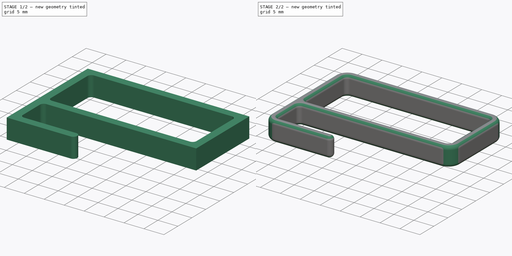
[diagram: build sequence overview — one tinted view per stage of 2, left to right]
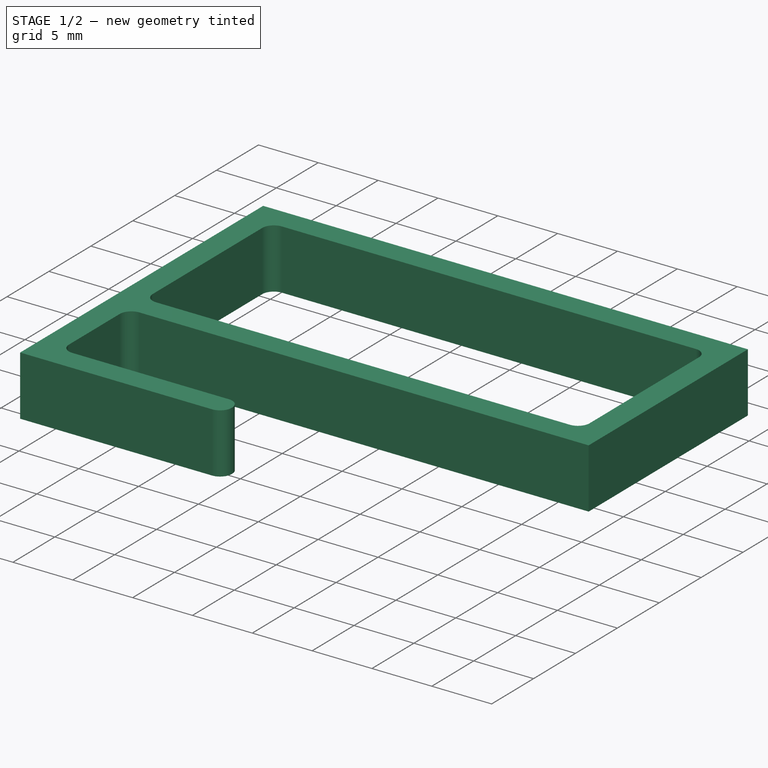
[diagram: stage 1 of 2 — iso view after this stage's code; geometry added in this stage tinted green]
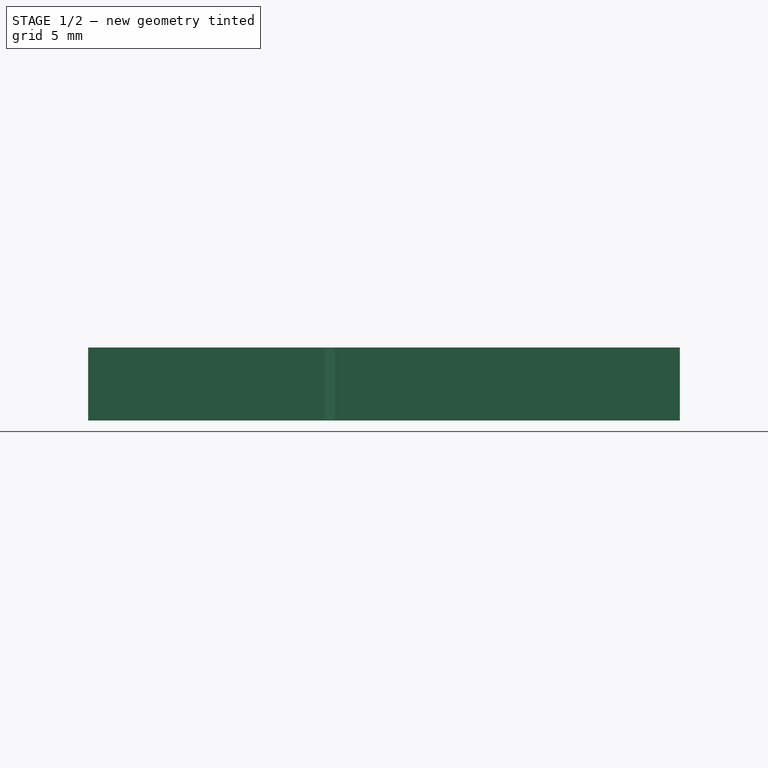
[diagram: stage 1 of 2 — front view after this stage's code; geometry added in this stage tinted green]
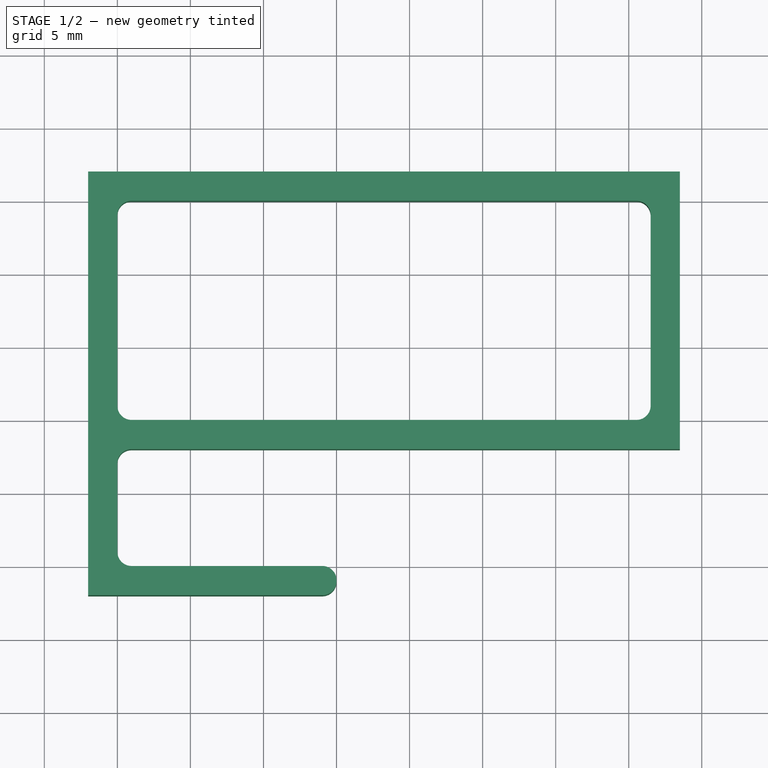
[diagram: stage 1 of 2 — top view after this stage's code; geometry added in this stage tinted green]
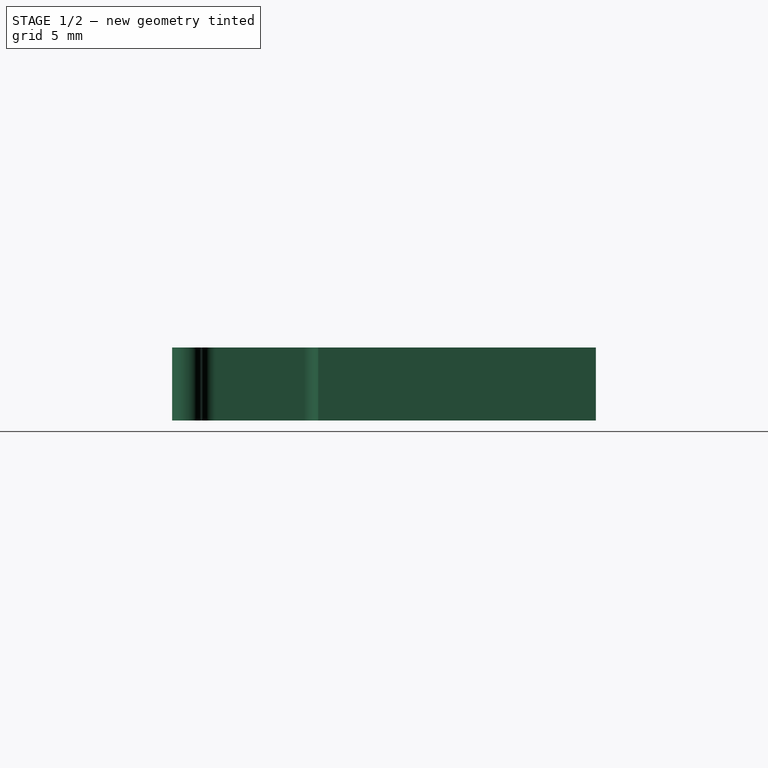
[diagram: stage 1 of 2 — right view after this stage's code; geometry added in this stage tinted green]
FCSTD DOCUMENT  (FreeCAD 0.18R16158 (Git))
Label: SSD-Holder
License: All rights reserved
LicenseURL: http://en.wikipedia.org/wiki/All_rights_reserved
objects: PartDesign::Fillet×3, Sketcher::SketchObject×1, Spreadsheet::Sheet×1, PartDesign::Pad×1, PartDesign::Body×1, App::Part×1
note: 7 computed .brp shape members not serialized (recipe doc carries the construction recipe); baked Part::Feature solids carry a one-line shape summary decoded from their .brp

FEATURE [Sketcher::SketchObject] Sketch
  MapMode = 5
  Support = -> [XY_Plane001]
  expr: Constraints[34] = Spreadsheet.holder_dim
  expr: Constraints[33] = Spreadsheet.holder_dim
  expr: Constraints[32] = Spreadsheet.holder_dim
  expr: Constraints[29] = Spreadsheet.holder_dim
  expr: Constraints[31] = Spreadsheet.screen_x
  expr: Constraints[30] = Spreadsheet.screen_y
  expr: Constraints[28] = Spreadsheet.holder_dim
  expr: Constraints[10] = Spreadsheet.ssd_y
  expr: Constraints[9] = Spreadsheet.ssd_x
  sketch-geometry (12):
    g0: LineSegment StartX=0 StartY=0 StartZ=0 EndX=36.5 EndY=0 EndZ=0
    g1: LineSegment StartX=36.5 StartY=0 StartZ=0 EndX=36.5 EndY=15 EndZ=0
    g2: LineSegment StartX=36.5 StartY=15 StartZ=0 EndX=0 EndY=15 EndZ=0
    g3: LineSegment StartX=0 StartY=15 StartZ=0 EndX=0 EndY=0 EndZ=0
    g4: LineSegment StartX=-2 StartY=17 StartZ=0 EndX=38.5 EndY=17 EndZ=0
    g5: LineSegment StartX=38.5 StartY=17 StartZ=0 EndX=38.5 EndY=-2 EndZ=0
    g6: LineSegment StartX=38.5 StartY=-2 StartZ=0 EndX=0 EndY=-2 EndZ=0
    g7: LineSegment StartX=0 StartY=-2 StartZ=0 EndX=0 EndY=-10 EndZ=0
    g8: LineSegment StartX=0 StartY=-10 StartZ=0 EndX=15 EndY=-10 EndZ=0
    g9: LineSegment StartX=15 StartY=-10 StartZ=0 EndX=15 EndY=-12 EndZ=0
    g10: LineSegment StartX=15 StartY=-12 StartZ=0 EndX=-2 EndY=-12 EndZ=0
    g11: LineSegment StartX=-2 StartY=-12 StartZ=0 EndX=-2 EndY=17 EndZ=0
  constraints (35):
    c: Coincident(g0,g1)
    c: Coincident(g1,g2)
    c: Coincident(g2,g3)
    c: Coincident(g3,g0)
    c: Horizontal(g0)
    c: Horizontal(g2)
    c: Vertical(g1)
    c: Vertical(g3)
    c: Coincident(g0,g-1)
    c: Distance(g2) = 36.5
    c: Distance(g3) = 15
    c: Horizontal(g4)
    c: Coincident(g4,g5)
    c: Vertical(g5)
    c: Coincident(g5,g6)
    c: PointOnObject(g6,g-2)
    c: Horizontal(g6)
    c: Coincident(g6,g7)
    c: PointOnObject(g7,g-2)
    c: Coincident(g7,g8)
    c: Horizontal(g8)
    c: Coincident(g8,g9)
    c: Vertical(g9)
    c: Coincident(g9,g10)
    c: Horizontal(g10)
    c: Coincident(g10,g11)
    c: Coincident(g11,g4)
    c: Vertical(g11)
    c: Distance(g1,g4) = 2
    c: Distance(g9) = 2
    c: Distance(g7) = 8
    c: Distance(g8) = 15
    c: Distance(g2,g11) = 2
    c: Distance(g1,g5) = 2
    c: Distance(g0,g6) = 2
FEATURE [Spreadsheet::Sheet] Spreadsheet
  cells = A2=ssd_x; B2(ssd_x)==36.5mm; A3=ssd_y; B3(ssd_y)==15mm; A5=screen_x; B5(screen_x)==15mm; A6=screen_y; B6(screen_y)==8mm; A8=holder_dim; B8(holder_dim)==2mm; A9=holder_thickness; B9(holder_thickness)==5mm
FEATURE [PartDesign::Pad] Pad
  Length = 5
  Length2 = 100
  Profile = -> Sketch
  Type = 0
  expr: Length = Spreadsheet.holder_thickness
FEATURE [PartDesign::Fillet] Fillet
  Base = -> Pad [Edge32,Edge29,Edge25,Edge26,Edge8,Edge11,Edge14,Edge17]
  BaseFeature = -> Pad
  Radius = 0.97
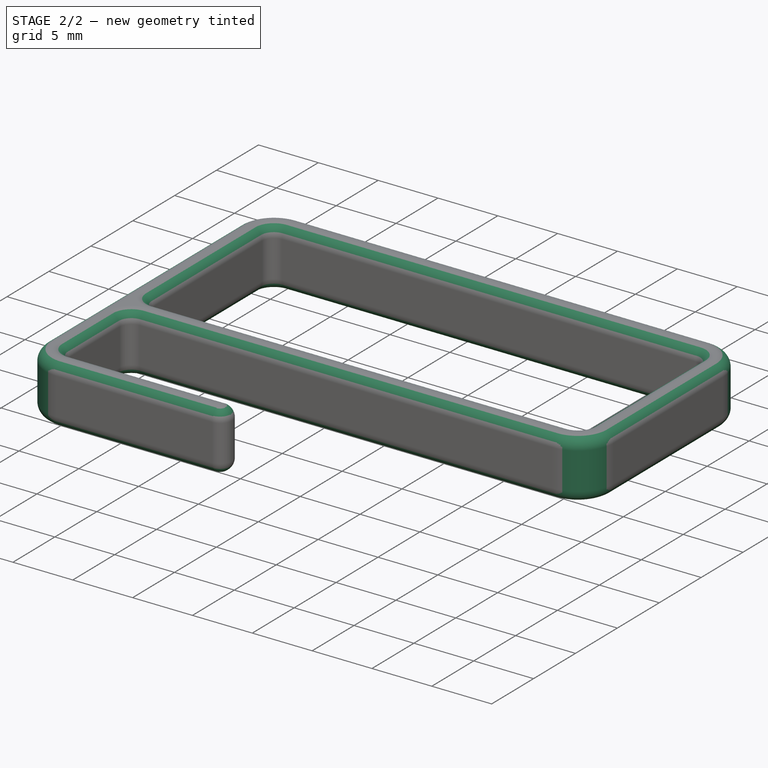
[diagram: stage 2 of 2 — iso view after this stage's code; geometry added in this stage tinted green]
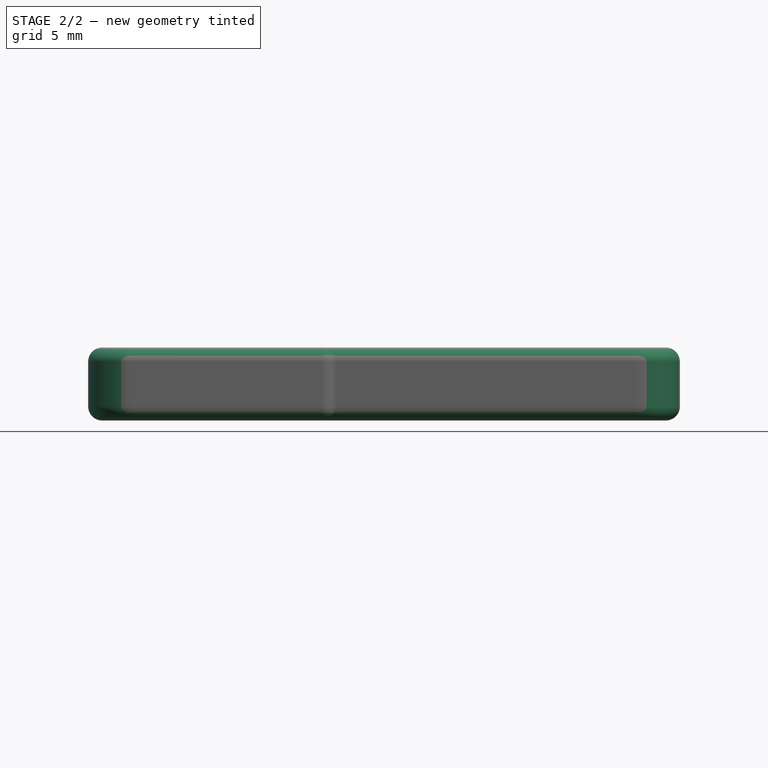
[diagram: stage 2 of 2 — front view after this stage's code; geometry added in this stage tinted green]
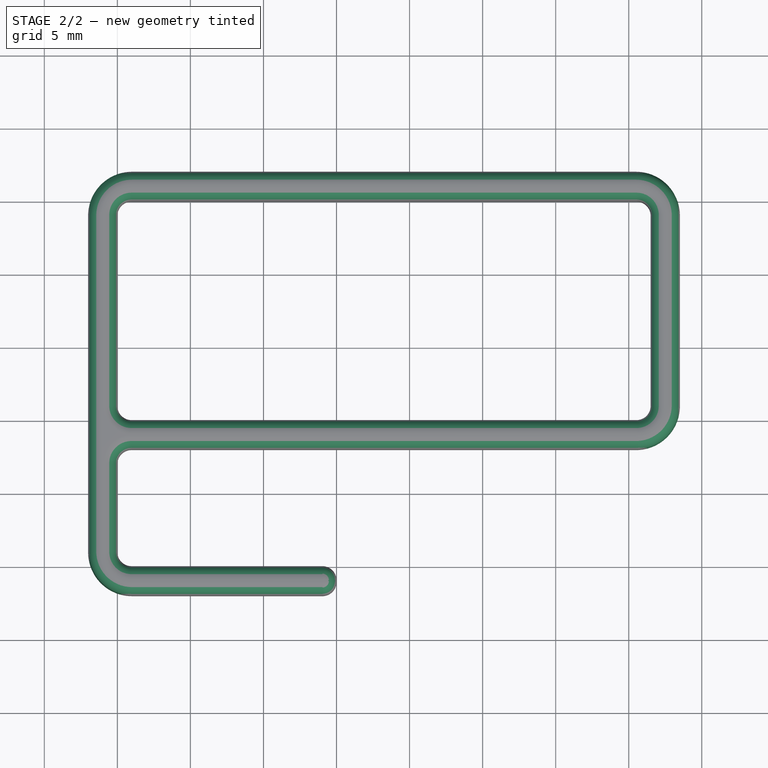
[diagram: stage 2 of 2 — top view after this stage's code; geometry added in this stage tinted green]
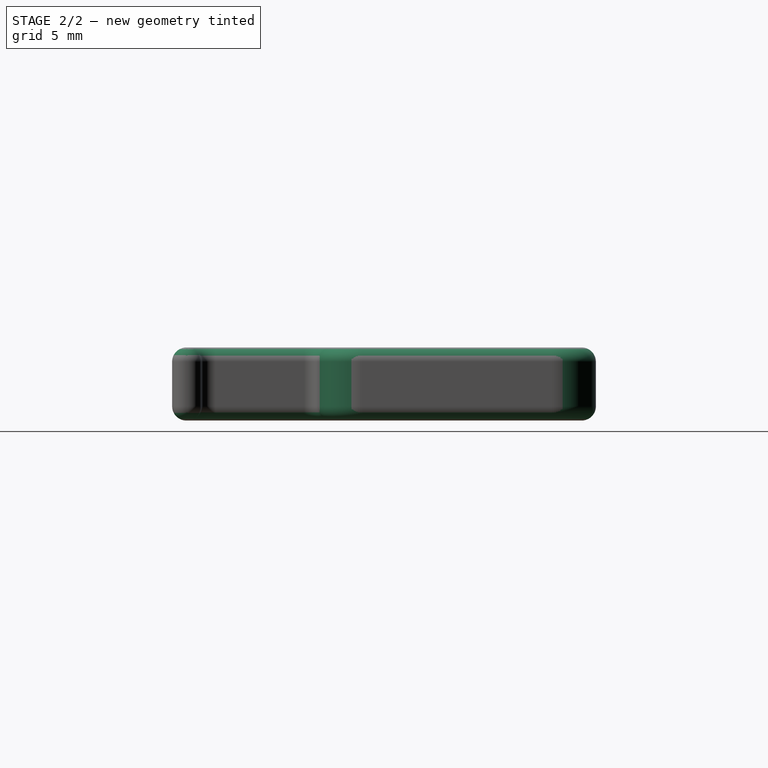
[diagram: stage 2 of 2 — right view after this stage's code; geometry added in this stage tinted green]
FEATURE [PartDesign::Fillet] Fillet001
  Base = -> Fillet [Edge48,Edge3,Edge26,Edge46]
  BaseFeature = -> Fillet
  Radius = 3
FEATURE [PartDesign::Fillet] Fillet002
  Base = -> Fillet001 [Edge45,Edge46,Edge48,Edge50,Edge52,Edge51,Edge49,Edge47,Edge27,Edge25,Edge26,Edge24,Edge23,Edge21,Edge20,Edge22,Edge7,Edge40]
  BaseFeature = -> Fillet001
  Radius = 0.97
FEATURE [PartDesign::Body] Body
  Group = -> [Sketch,Pad,Fillet,Fillet001,Fillet002]
  Origin = -> Origin001
  Tip = -> Fillet002
FEATURE [App::Part] Part
  Group = -> [Body]
  Origin = -> Origin
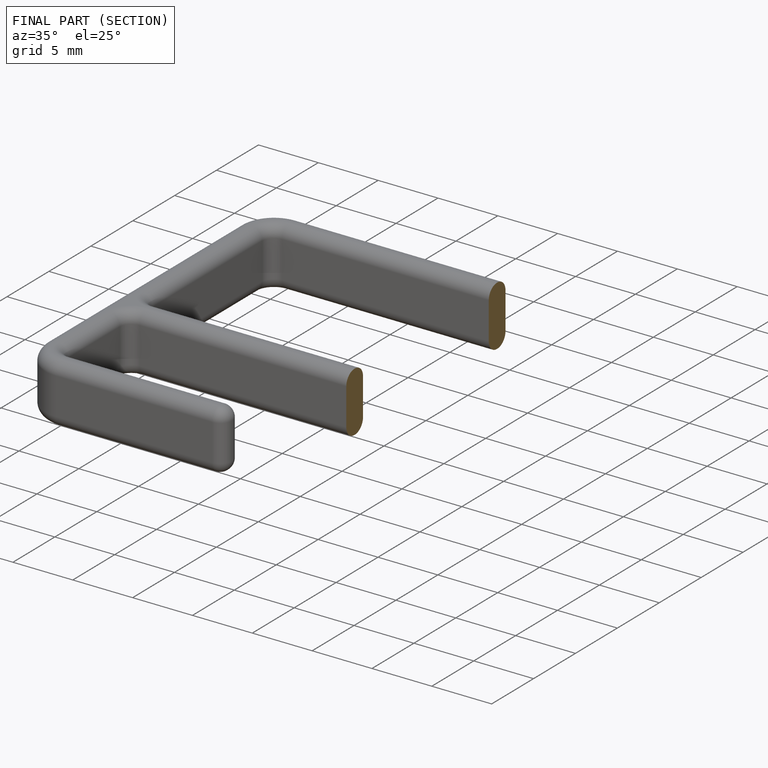
[diagram: finished part — half-section view (interior)]
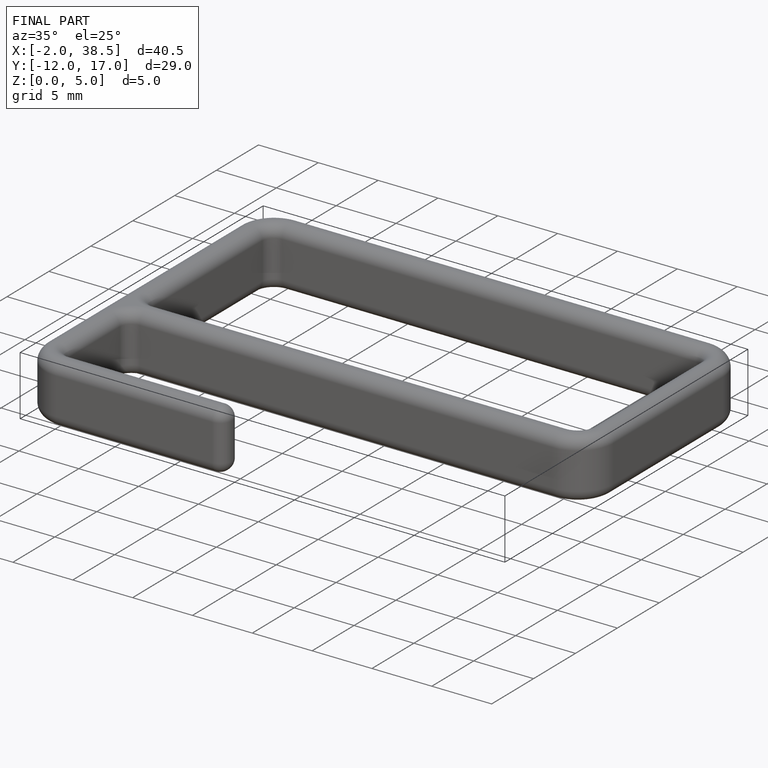
[diagram: finished part — iso view with bounding-box wireframe]
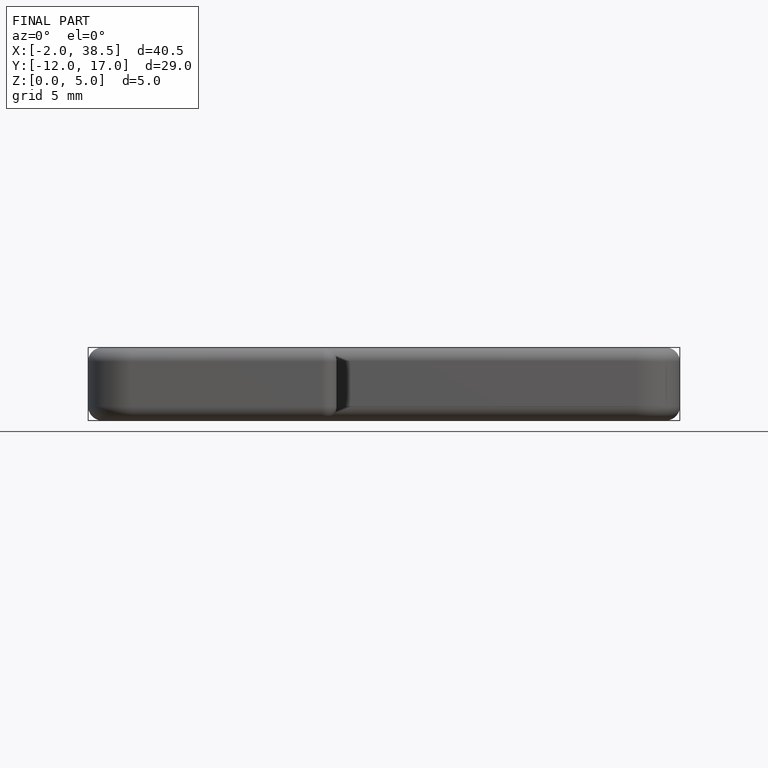
[diagram: finished part — front view with bounding-box wireframe]
